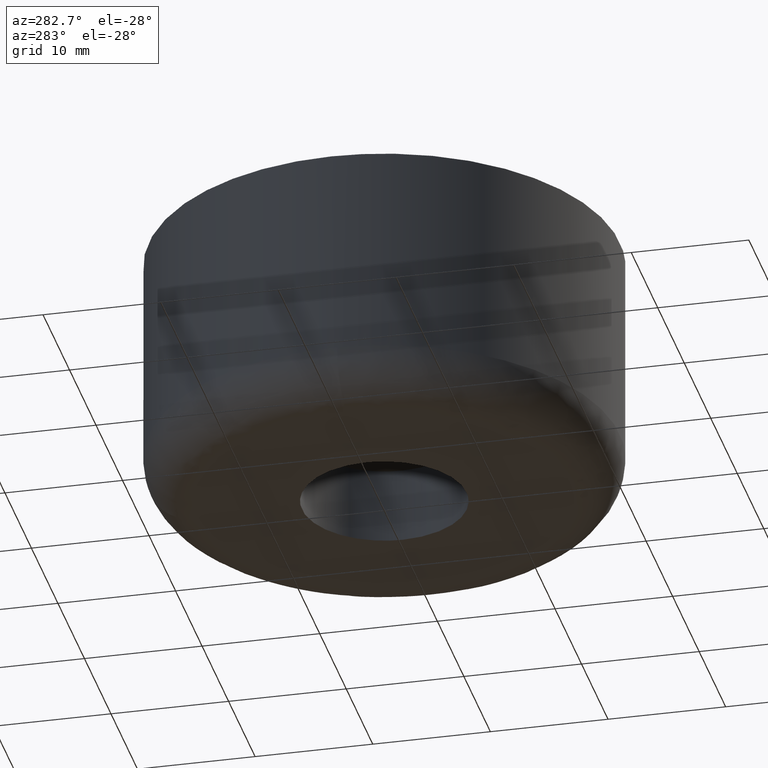
[diagram: clean part render]
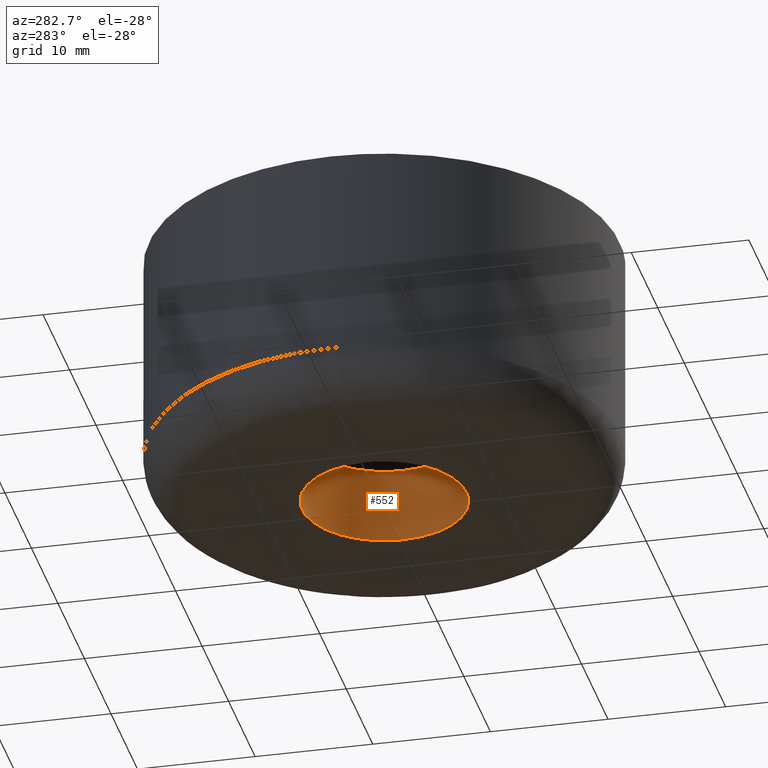
[diagram: same view with one face highlighted and labeled with its STEP entity id]
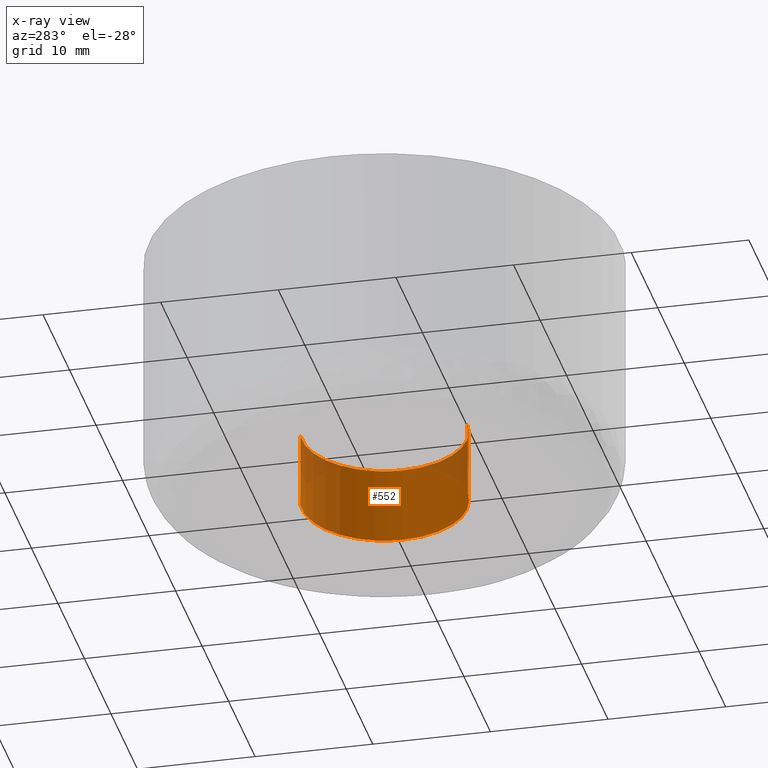
[diagram: x-ray of the same camera — body ghosted, the highlighted face saturated]
A machine part, auxiliary view. The second image highlights one B-rep face of the part: STEP entity #552.
The next image is the same camera in x-ray: the body ghosted, the highlighted face saturated — about 14% of this face is hidden behind the body in this view.
In plain terms, the highlighted face is a freeform B-spline surface patch.
Its self-contained STEP definition (entity closure, byte-faithful):
#450=CARTESIAN_POINT('',(-0.826239642597309,6.951066684545665,6.662500000000104));
#451=CARTESIAN_POINT('',(-0.627303100465844,6.974713308140240,6.662500000000103));
#452=CARTESIAN_POINT('',(-0.427339776743999,6.986943588953067,6.662500000000103));
#453=CARTESIAN_POINT('',(6.559603812209068,7.414283365697066,6.662500000000103));
#454=CARTESIAN_POINT('',(6.986943588953067,0.427339776743999,6.662500000000103));
#455=CARTESIAN_POINT('',(7.414283365697066,-6.559603812209068,6.662500000000103));
#456=CARTESIAN_POINT('',(0.427339776743999,-6.986943588953067,6.662500000000103));
#457=CARTESIAN_POINT('',(-0.826239642597309,6.951066684545665,-0.166562500000003));
#458=CARTESIAN_POINT('',(-0.627303100465844,6.974713308140240,-0.166562500000003));
#459=CARTESIAN_POINT('',(-0.427339776743999,6.986943588953067,-0.166562500000003));
#460=CARTESIAN_POINT('',(6.559603812209068,7.414283365697066,-0.166562500000003));
#461=CARTESIAN_POINT('',(6.986943588953067,0.427339776743999,-0.166562500000003));
#462=CARTESIAN_POINT('',(7.414283365697066,-6.559603812209068,-0.166562500000003));
#463=CARTESIAN_POINT('',(0.427339776743999,-6.986943588953067,-0.166562500000003));
#471=(BOUNDED_SURFACE()B_SPLINE_SURFACE(2,1,((#450,#457),(#451,#458),(#452,#459),(#453,#460),(#454,#461),(#455,#462),(#456,#463)),.UNSPECIFIED.,.F.,.F.,.U.)B_SPLINE_SURFACE_WITH_KNOTS((3,2,2,3),(2,2),(0.0,0.463919189857867,12.061898936304530,23.659878682751181),(0.0,6.829062500000107),.UNSPECIFIED.)GEOMETRIC_REPRESENTATION_ITEM()RATIONAL_B_SPLINE_SURFACE(((0.977505800795127,0.977505800795127),(0.988284271247462,0.988284271247462),(1.0,1.0),(0.707106781186548,0.707106781186548),(1.0,1.0),(0.707106781186548,0.707106781186548),(1.0,1.0)))REPRESENTATION_ITEM('')SURFACE());
#472=CARTESIAN_POINT('',(-0.826227817998268,6.951068090058103,-1.085797E-013));
#473=VERTEX_POINT('',#472);
#474=CARTESIAN_POINT('',(7.0,0.0,0.0));
#475=VERTEX_POINT('',#474);
#476=CARTESIAN_POINT('',(-0.826227817998268,6.951068090058103,-1.085797E-013));
#477=CARTESIAN_POINT('',(-0.414562862761283,7.0,0.0));
#478=CARTESIAN_POINT('',(0.0,7.0,0.0));
#479=CARTESIAN_POINT('',(6.999999999999999,6.999999999999999,0.0));
#480=CARTESIAN_POINT('',(7.0,0.0,0.0));
#488=(BOUNDED_CURVE()B_SPLINE_CURVE(2,(#476,#477,#478,#479,#480),.UNSPECIFIED.,.F.,.U.)B_SPLINE_CURVE_WITH_KNOTS((3,2,3),(0.229562761010492,0.250000000000000,0.500000000000000),.UNSPECIFIED.)CURVE()GEOMETRIC_REPRESENTATION_ITEM()RATIONAL_B_SPLINE_CURVE((0.956027317690327,0.976056285154812,1.0,0.707106781186547,1.0))REPRESENTATION_ITEM(''));
#489=EDGE_CURVE('',#473,#475,#488,.T.);
#490=ORIENTED_EDGE('',*,*,#489,.T.);
#491=CARTESIAN_POINT('',(0.427339776773775,-6.986943588951247,2.220446E-016));
#492=VERTEX_POINT('',#491);
#493=CARTESIAN_POINT('',(7.0,0.0,0.0));
#494=CARTESIAN_POINT('',(7.0,-6.584942468283616,0.0));
#495=CARTESIAN_POINT('',(0.427339776773775,-6.986943588951247,2.220446E-016));
#503=(BOUNDED_CURVE()B_SPLINE_CURVE(2,(#493,#494,#495),.UNSPECIFIED.,.F.,.U.)B_SPLINE_CURVE_WITH_KNOTS((3,3),(0.500000000000000,0.739332962240497),.UNSPECIFIED.)CURVE()GEOMETRIC_REPRESENTATION_ITEM()RATIONAL_B_SPLINE_CURVE((1.0,0.719603993284889,0.976072041670049))REPRESENTATION_ITEM(''));
#504=EDGE_CURVE('',#475,#492,#503,.T.);
#505=ORIENTED_EDGE('',*,*,#504,.T.);
#506=CARTESIAN_POINT('',(0.427339776773775,-6.986943588951247,6.500000000000100));
#507=VERTEX_POINT('',#506);
#508=CARTESIAN_POINT('',(0.427339776773775,-6.986943588951247,6.500000000000100));
#509=CARTESIAN_POINT('',(0.427339776773775,-6.986943588951247,2.220446E-016));
#510=QUASI_UNIFORM_CURVE('',1,(#508,#509),.UNSPECIFIED.,.F.,.U.);
#511=EDGE_CURVE('',#507,#492,#510,.T.);
#512=ORIENTED_EDGE('',*,*,#511,.F.);
#513=CARTESIAN_POINT('',(7.0,0.0,6.500000000000100));
#514=VERTEX_POINT('',#513);
#515=CARTESIAN_POINT('',(7.0,0.0,6.500000000000100));
#516=CARTESIAN_POINT('',(7.0,-6.584942468283616,6.500000000000100));
#517=CARTESIAN_POINT('',(0.427339776773775,-6.986943588951247,6.500000000000100));
#525=(BOUNDED_CURVE()B_SPLINE_CURVE(2,(#515,#516,#517),.UNSPECIFIED.,.F.,.U.)B_SPLINE_CURVE_WITH_KNOTS((3,3),(0.500000000000000,0.739332962240497),.UNSPECIFIED.)CURVE()GEOMETRIC_REPRESENTATION_ITEM()RATIONAL_B_SPLINE_CURVE((1.0,0.719603993284889,0.976072041670049))REPRESENTATION_ITEM(''));
#526=EDGE_CURVE('',#514,#507,#525,.T.);
#527=ORIENTED_EDGE('',*,*,#526,.F.);
#528=CARTESIAN_POINT('',(-0.826227963984342,6.951068072705946,6.500000000000100));
#529=VERTEX_POINT('',#528);
#530=CARTESIAN_POINT('',(-0.826227963984342,6.951068072705946,6.500000000000100));
#531=CARTESIAN_POINT('',(-0.414562936525956,7.000000000000001,6.500000000000100));
#532=CARTESIAN_POINT('',(0.0,7.0,6.500000000000100));
#533=CARTESIAN_POINT('',(6.999999999999999,6.999999999999999,6.500000000000099));
#534=CARTESIAN_POINT('',(7.0,0.0,6.500000000000100));
#542=(BOUNDED_CURVE()B_SPLINE_CURVE(2,(#530,#531,#532,#533,#534),.UNSPECIFIED.,.F.,.U.)B_SPLINE_CURVE_WITH_KNOTS((3,2,3),(0.229562757461090,0.250000000000000,0.500000000000000),.UNSPECIFIED.)CURVE()GEOMETRIC_REPRESENTATION_ITEM()RATIONAL_B_SPLINE_CURVE((0.956027310733336,0.976056280996430,1.0,0.707106781186547,1.0))REPRESENTATION_ITEM(''));
#543=EDGE_CURVE('',#529,#514,#542,.T.);
#544=ORIENTED_EDGE('',*,*,#543,.F.);
#545=CARTESIAN_POINT('',(-0.826227963984342,6.951068072705946,6.500000000000100));
#546=CARTESIAN_POINT('',(-0.826227817998268,6.951068090058103,-1.085797E-013));
#547=QUASI_UNIFORM_CURVE('',1,(#545,#546),.UNSPECIFIED.,.F.,.U.);
#548=EDGE_CURVE('',#529,#473,#547,.T.);
#549=ORIENTED_EDGE('',*,*,#548,.T.);
#550=EDGE_LOOP('',(#490,#505,#512,#527,#544,#549));
#551=FACE_OUTER_BOUND('',#550,.T.);
#552=ADVANCED_FACE('',(#551),#471,.F.);